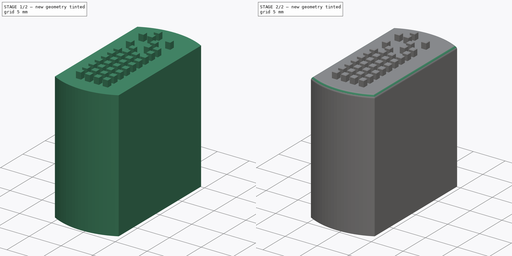
[diagram: build sequence overview — one tinted view per stage of 2, left to right]
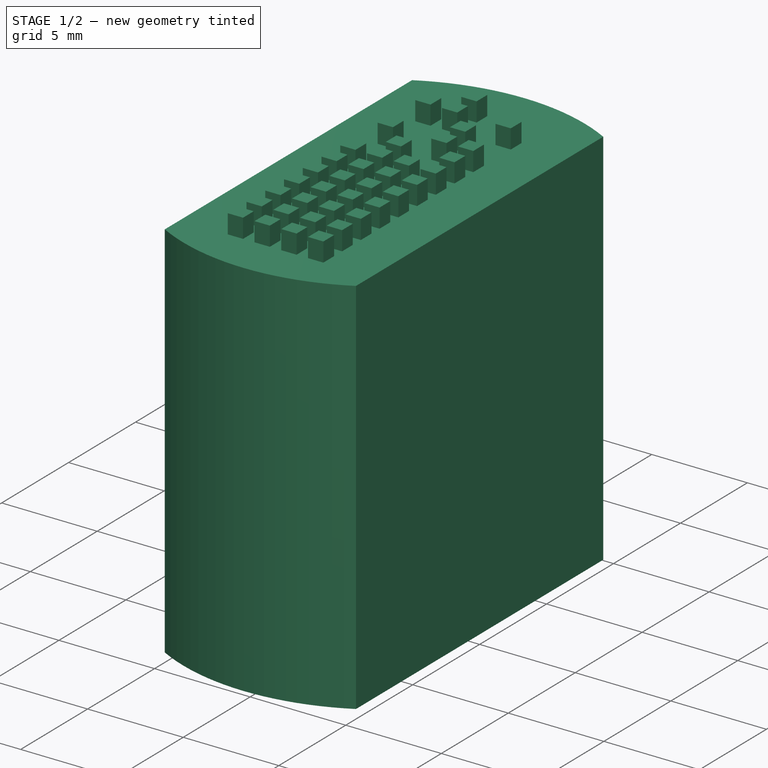
[diagram: stage 1 of 2 — iso view after this stage's code; geometry added in this stage tinted green]
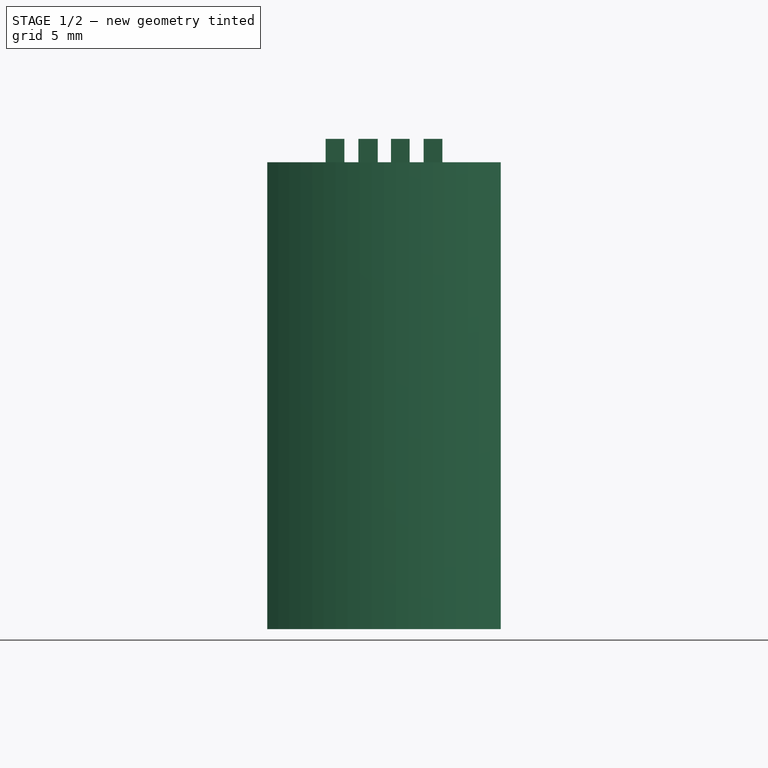
[diagram: stage 1 of 2 — front view after this stage's code; geometry added in this stage tinted green]
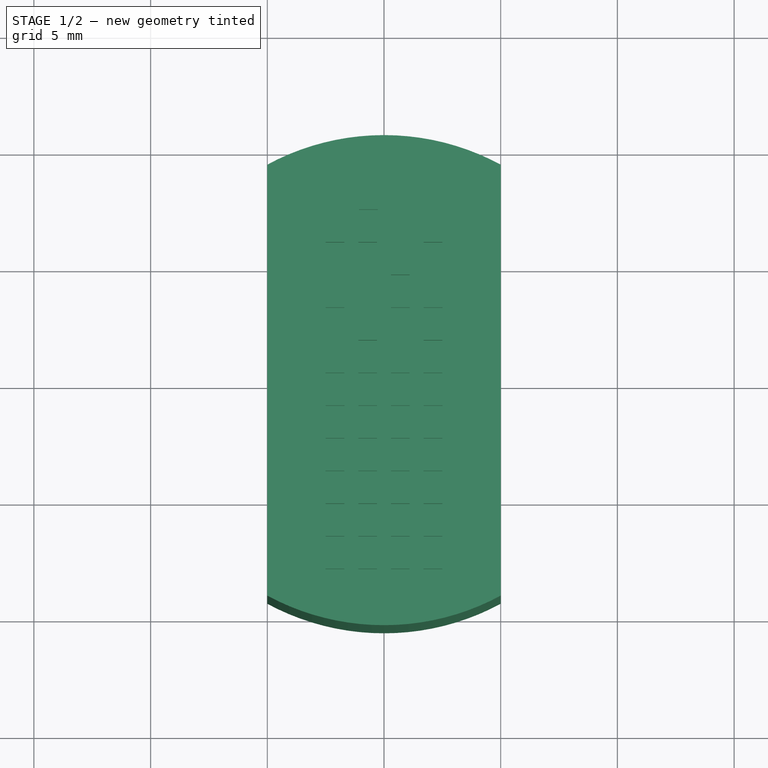
[diagram: stage 1 of 2 — top view after this stage's code; geometry added in this stage tinted green]
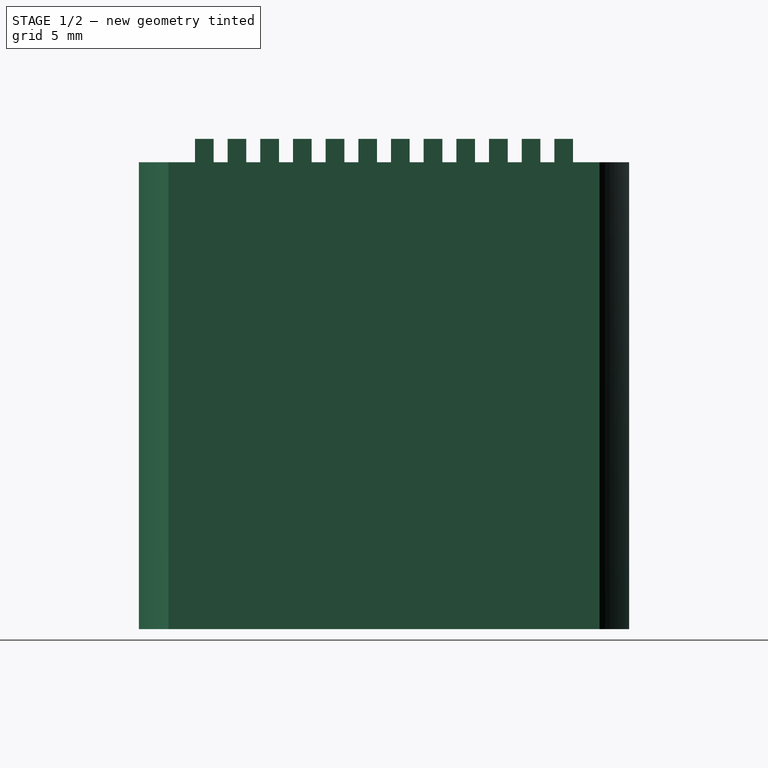
[diagram: stage 1 of 2 — right view after this stage's code; geometry added in this stage tinted green]
FCSTD DOCUMENT  (FreeCAD 0.18R16131 (Git))
Label: Stempel rote spots 1 (gespiegelt)
License: All rights reserved
LicenseURL: http://en.wikipedia.org/wiki/All_rights_reserved
objects: Sketcher::SketchObject×2, PartDesign::Pad×2, PartDesign::Chamfer×1, PartDesign::Fillet×1, PartDesign::Body×1
note: 9 computed .brp shape members not serialized (recipe doc carries the construction recipe); baked Part::Feature solids carry a one-line shape summary decoded from their .brp

FEATURE [Sketcher::SketchObject] Sketch
  MapMode = 5
  Support = -> [XY_Plane]
  sketch-geometry (4):
    g0: LineSegment StartX=-5 StartY=9.23309 StartZ=0 EndX=-5 EndY=-9.23309 EndZ=0
    g1: LineSegment StartX=5 StartY=-9.23309 StartZ=0 EndX=5 EndY=9.23309 EndZ=0
    g2: ArcOfCircle CenterX=0 CenterY=0 CenterZ=0 NormalX=0 NormalY=0 NormalZ=1 AngleXU=0 Radius=10.5 StartAngle=1.07448 EndAngle=2.06711
    g3: ArcOfCircle CenterX=0 CenterY=0 CenterZ=0 NormalX=0 NormalY=0 NormalZ=1 AngleXU=0 Radius=10.5 StartAngle=4.21607 EndAngle=5.20871
  constraints (12):
    c: Coincident(g3,g1)
    c: Coincident(g3,g0)
    c: Coincident(g0,g2)
    c: Coincident(g2,g1)
    c: Equal(g2,g3)
    c: Vertical(g1)
    c: Equal(g0,g1)
    c: Radius(g2) = 10.5
    c: Coincident(g3,g-1)
    c: Coincident(g2,g3)
    c: Vertical(g0)
    c: Distance(g1,g0) = 10
FEATURE [PartDesign::Pad] Pad
  Length = 20
  Length2 = 100
  Profile = -> Sketch
  Type = 0
FEATURE [Sketcher::SketchObject] Sketch001
  MapMode = 5
  Placement = pos=(0,0,20) rot=(0,0,1;0rad)
  Support = -> [Pad]
  sketch-geometry (152):
    g0: LineSegment StartX=-2.5 StartY=-7.3 StartZ=0 EndX=-1.7 EndY=-7.3 EndZ=0
    g1: LineSegment StartX=-1.7 StartY=-7.3 StartZ=0 EndX=-1.7 EndY=-8.1 EndZ=0
    g2: LineSegment StartX=-1.7 StartY=-8.1 StartZ=0 EndX=-2.5 EndY=-8.1 EndZ=0
    g3: LineSegment StartX=-2.5 StartY=-8.1 StartZ=0 EndX=-2.5 EndY=-7.3 EndZ=0
    g4: LineSegment StartX=-1.1 StartY=-8.1 StartZ=0 EndX=-0.3 EndY=-8.1 EndZ=0
    g5: LineSegment StartX=-0.3 StartY=-8.1 StartZ=0 EndX=-0.3 EndY=-7.3 EndZ=0
    g6: LineSegment StartX=-0.3 StartY=-7.3 StartZ=0 EndX=-1.1 EndY=-7.3 EndZ=0
    g7: LineSegment StartX=-1.1 StartY=-7.3 StartZ=0 EndX=-1.1 EndY=-8.1 EndZ=0
    g8: LineSegment StartX=0.3 StartY=-8.1 StartZ=0 EndX=1.1 EndY=-8.1 EndZ=0
    g9: LineSegment StartX=1.1 StartY=-8.1 StartZ=0 EndX=1.1 EndY=-7.3 EndZ=0
    g10: LineSegment StartX=1.1 StartY=-7.3 StartZ=0 EndX=0.3 EndY=-7.3 EndZ=0
    g11: LineSegment StartX=0.3 StartY=-7.3 StartZ=0 EndX=0.3 EndY=-8.1 EndZ=0
    g12: LineSegment StartX=1.7 StartY=-8.1 StartZ=0 EndX=2.5 EndY=-8.1 EndZ=0
    g13: LineSegment StartX=2.5 StartY=-8.1 StartZ=0 EndX=2.5 EndY=-7.3 EndZ=0
    g14: LineSegment StartX=2.5 StartY=-7.3 StartZ=0 EndX=1.7 EndY=-7.3 EndZ=0
    g15: LineSegment StartX=1.7 StartY=-7.3 StartZ=0 EndX=1.7 EndY=-8.1 EndZ=0
    g16: LineSegment StartX=-2.5 StartY=-5.9 StartZ=0 EndX=-1.7 EndY=-5.9 EndZ=0
    g17: LineSegment StartX=-1.7 StartY=-5.9 StartZ=0 EndX=-1.7 EndY=-6.7 EndZ=0
    g18: LineSegment StartX=-1.7 StartY=-6.7 StartZ=0 EndX=-2.5 EndY=-6.7 EndZ=0
    g19: LineSegment StartX=-2.5 StartY=-6.7 StartZ=0 EndX=-2.5 EndY=-5.9 EndZ=0
    g20: LineSegment StartX=-1.1 StartY=-6.7 StartZ=0 EndX=-0.3 EndY=-6.7 EndZ=0
    g21: LineSegment StartX=-0.3 StartY=-6.7 StartZ=0 EndX=-0.3 EndY=-5.9 EndZ=0
    g22: LineSegment StartX=-0.3 StartY=-5.9 StartZ=0 EndX=-1.1 EndY=-5.9 EndZ=0
    g23: LineSegment StartX=-1.1 StartY=-5.9 StartZ=0 EndX=-1.1 EndY=-6.7 EndZ=0
    g24: LineSegment StartX=0.3 StartY=-6.7 StartZ=0 EndX=1.1 EndY=-6.7 EndZ=0
    g25: LineSegment StartX=1.1 StartY=-6.7 StartZ=0 EndX=1.1 EndY=-5.9 EndZ=0
    g26: LineSegment StartX=1.1 StartY=-5.9 StartZ=0 EndX=0.3 EndY=-5.9 EndZ=0
    g27: LineSegment StartX=0.3 StartY=-5.9 StartZ=0 EndX=0.3 EndY=-6.7 EndZ=0
    g28: LineSegment StartX=1.7 StartY=-6.7 StartZ=0 EndX=2.5 EndY=-6.7 EndZ=0
    g29: LineSegment StartX=2.5 StartY=-6.7 StartZ=0 EndX=2.5 EndY=-5.9 EndZ=0
    g30: LineSegment StartX=2.5 StartY=-5.9 StartZ=0 EndX=1.7 EndY=-5.9 EndZ=0
    g31: LineSegment StartX=1.7 StartY=-5.9 StartZ=0 EndX=1.7 EndY=-6.7 EndZ=0
    g32: LineSegment StartX=-2.5 StartY=-4.5 StartZ=0 EndX=-1.7 EndY=-4.5 EndZ=0
    g33: LineSegment StartX=-1.7 StartY=-4.5 StartZ=0 EndX=-1.7 EndY=-5.3 EndZ=0
    g34: LineSegment StartX=-1.7 StartY=-5.3 StartZ=0 EndX=-2.5 EndY=-5.3 EndZ=0
    g35: LineSegment StartX=-2.5 StartY=-5.3 StartZ=0 EndX=-2.5 EndY=-4.5 EndZ=0
    g36: LineSegment StartX=-1.1 StartY=-5.3 StartZ=0 EndX=-0.3 EndY=-5.3 EndZ=0
    g37: LineSegment StartX=-0.3 StartY=-5.3 StartZ=0 EndX=-0.3 EndY=-4.5 EndZ=0
    g38: LineSegment StartX=-0.3 StartY=-4.5 StartZ=0 EndX=-1.1 EndY=-4.5 EndZ=0
    g39: LineSegment StartX=-1.1 StartY=-4.5 StartZ=0 EndX=-1.1 EndY=-5.3 EndZ=0
    g40: LineSegment StartX=0.3 StartY=-5.3 StartZ=0 EndX=1.1 EndY=-5.3 EndZ=0
    g41: LineSegment StartX=1.1 StartY=-5.3 StartZ=0 EndX=1.1 EndY=-4.5 EndZ=0
    g42: LineSegment StartX=1.1 StartY=-4.5 StartZ=0 EndX=0.3 EndY=-4.5 EndZ=0
    g43: LineSegment StartX=0.3 StartY=-4.5 StartZ=0 EndX=0.3 EndY=-5.3 EndZ=0
    g44: LineSegment StartX=1.7 StartY=-5.3 StartZ=0 EndX=2.5 EndY=-5.3 EndZ=0
    g45: LineSegment StartX=2.5 StartY=-5.3 StartZ=0 EndX=2.5 EndY=-4.5 EndZ=0
    g46: LineSegment StartX=2.5 StartY=-4.5 StartZ=0 EndX=1.7 EndY=-4.5 EndZ=0
    g47: LineSegment StartX=1.7 StartY=-4.5 StartZ=0 EndX=1.7 EndY=-5.3 EndZ=0
    g48: LineSegment StartX=-2.5 StartY=-3.1 StartZ=0 EndX=-1.7 EndY=-3.1 EndZ=0
    g49: LineSegment StartX=-1.7 StartY=-3.1 StartZ=0 EndX=-1.7 EndY=-3.9 EndZ=0
    g50: LineSegment StartX=-1.7 StartY=-3.9 StartZ=0 EndX=-2.5 EndY=-3.9 EndZ=0
    g51: LineSegment StartX=-2.5 StartY=-3.9 StartZ=0 EndX=-2.5 EndY=-3.1 EndZ=0
    g52: LineSegment StartX=-1.1 StartY=-3.9 StartZ=0 EndX=-0.3 EndY=-3.9 EndZ=0
    g53: LineSegment StartX=-0.3 StartY=-3.9 StartZ=0 EndX=-0.3 EndY=-3.1 EndZ=0
    g54: LineSegment StartX=-0.3 StartY=-3.1 StartZ=0 EndX=-1.1 EndY=-3.1 EndZ=0
    g55: LineSegment StartX=-1.1 StartY=-3.1 StartZ=0 EndX=-1.1 EndY=-3.9 EndZ=0
    g56: LineSegment StartX=0.3 StartY=-3.9 StartZ=0 EndX=1.1 EndY=-3.9 EndZ=0
    g57: LineSegment StartX=1.1 StartY=-3.9 StartZ=0 EndX=1.1 EndY=-3.1 EndZ=0
    g58: LineSegment StartX=1.1 StartY=-3.1 StartZ=0 EndX=0.3 EndY=-3.1 EndZ=0
    g59: LineSegment StartX=0.3 StartY=-3.1 StartZ=0 EndX=0.3 EndY=-3.9 EndZ=0
    g60: LineSegment StartX=1.7 StartY=-3.9 StartZ=0 EndX=2.5 EndY=-3.9 EndZ=0
    g61: LineSegment StartX=2.5 StartY=-3.9 StartZ=0 EndX=2.5 EndY=-3.1 EndZ=0
    g62: LineSegment StartX=2.5 StartY=-3.1 StartZ=0 EndX=1.7 EndY=-3.1 EndZ=0
    g63: LineSegment StartX=1.7 StartY=-3.1 StartZ=0 EndX=1.7 EndY=-3.9 EndZ=0
    g64: LineSegment StartX=-2.5 StartY=-1.7 StartZ=0 EndX=-1.7 EndY=-1.7 EndZ=0
    g65: LineSegment StartX=-1.7 StartY=-1.7 StartZ=0 EndX=-1.7 EndY=-2.5 EndZ=0
    g66: LineSegment StartX=-1.7 StartY=-2.5 StartZ=0 EndX=-2.5 EndY=-2.5 EndZ=0
    g67: LineSegment StartX=-2.5 StartY=-2.5 StartZ=0 EndX=-2.5 EndY=-1.7 EndZ=0
    g68: LineSegment StartX=-1.1 StartY=-2.5 StartZ=0 EndX=-0.3 EndY=-2.5 EndZ=0
    g69: LineSegment StartX=-0.3 StartY=-2.5 StartZ=0 EndX=-0.3 EndY=-1.7 EndZ=0
    g70: LineSegment StartX=-0.3 StartY=-1.7 StartZ=0 EndX=-1.1 EndY=-1.7 EndZ=0
    g71: LineSegment StartX=-1.1 StartY=-1.7 StartZ=0 EndX=-1.1 EndY=-2.5 EndZ=0
    g72: LineSegment StartX=0.3 StartY=-2.5 StartZ=0 EndX=1.1 EndY=-2.5 EndZ=0
    g73: LineSegment StartX=1.1 StartY=-2.5 StartZ=0 EndX=1.1 EndY=-1.7 EndZ=0
    g74: LineSegment StartX=1.1 StartY=-1.7 StartZ=0 EndX=0.3 EndY=-1.7 EndZ=0
    g75: LineSegment StartX=0.3 StartY=-1.7 StartZ=0 EndX=0.3 EndY=-2.5 EndZ=0
    g76: LineSegment StartX=1.7 StartY=-2.5 StartZ=0 EndX=2.5 EndY=-2.5 EndZ=0
    g77: LineSegment StartX=2.5 StartY=-2.5 StartZ=0 EndX=2.5 EndY=-1.7 EndZ=0
    g78: LineSegment StartX=2.5 StartY=-1.7 StartZ=0 EndX=1.7 EndY=-1.7 EndZ=0
    g79: LineSegment StartX=1.7 StartY=-1.7 StartZ=0 EndX=1.7 EndY=-2.5 EndZ=0
    g80: LineSegment StartX=-2.5 StartY=-0.3 StartZ=0 EndX=-1.7 EndY=-0.3 EndZ=0
    g81: LineSegment StartX=-1.7 StartY=-0.3 StartZ=0 EndX=-1.7 EndY=-1.1 EndZ=0
    g82: LineSegment StartX=-1.7 StartY=-1.1 StartZ=0 EndX=-2.5 EndY=-1.1 EndZ=0
    g83: LineSegment StartX=-2.5 StartY=-1.1 StartZ=0 EndX=-2.5 EndY=-0.3 EndZ=0
    g84: LineSegment StartX=-1.1 StartY=-1.1 StartZ=0 EndX=-0.3 EndY=-1.1 EndZ=0
    g85: LineSegment StartX=-0.3 StartY=-1.1 StartZ=0 EndX=-0.3 EndY=-0.3 EndZ=0
    g86: LineSegment StartX=-0.3 StartY=-0.3 StartZ=0 EndX=-1.1 EndY=-0.3 EndZ=0
    g87: LineSegment StartX=-1.1 StartY=-0.3 StartZ=0 EndX=-1.1 EndY=-1.1 EndZ=0
    g88: LineSegment StartX=0.3 StartY=-1.1 StartZ=0 EndX=1.1 EndY=-1.1 EndZ=0
    g89: LineSegment StartX=1.1 StartY=-1.1 StartZ=0 EndX=1.1 EndY=-0.3 EndZ=0
    g90: LineSegment StartX=1.1 StartY=-0.3 StartZ=0 EndX=0.3 EndY=-0.3 EndZ=0
    g91: LineSegment StartX=0.3 StartY=-0.3 StartZ=0 EndX=0.3 EndY=-1.1 EndZ=0
    g92: LineSegment StartX=1.7 StartY=-1.1 StartZ=0 EndX=2.5 EndY=-1.1 EndZ=0
    g93: LineSegment StartX=2.5 StartY=-1.1 StartZ=0 EndX=2.5 EndY=-0.3 EndZ=0
    g94: LineSegment StartX=2.5 StartY=-0.3 StartZ=0 EndX=1.7 EndY=-0.3 EndZ=0
    g95: LineSegment StartX=1.7 StartY=-0.3 StartZ=0 EndX=1.7 EndY=-1.1 EndZ=0
    g96: LineSegment StartX=-2.5 StartY=1.1 StartZ=0 EndX=-1.7 EndY=1.1 EndZ=0
    g97: LineSegment StartX=-1.7 StartY=1.1 StartZ=0 EndX=-1.7 EndY=0.3 EndZ=0
    g98: LineSegment StartX=-1.7 StartY=0.3 StartZ=0 EndX=-2.5 EndY=0.3 EndZ=0
    g99: LineSegment StartX=-2.5 StartY=0.3 StartZ=0 EndX=-2.5 EndY=1.1 EndZ=0
    g100: LineSegment StartX=-1.1 StartY=0.3 StartZ=0 EndX=-0.3 EndY=0.3 EndZ=0
    g101: LineSegment StartX=-0.3 StartY=0.3 StartZ=0 EndX=-0.3 EndY=1.1 EndZ=0
    g102: LineSegment StartX=-0.3 StartY=1.1 StartZ=0 EndX=-1.1 EndY=1.1 EndZ=0
    g103: LineSegment StartX=-1.1 StartY=1.1 StartZ=0 EndX=-1.1 EndY=0.3 EndZ=0
    g104: LineSegment StartX=0.3 StartY=0.3 StartZ=0 EndX=1.1 EndY=0.3 EndZ=0
    g105: LineSegment StartX=1.1 StartY=0.3 StartZ=0 EndX=1.1 EndY=1.1 EndZ=0
    g106: LineSegment StartX=1.1 StartY=1.1 StartZ=0 EndX=0.3 EndY=1.1 EndZ=0
    g107: LineSegment StartX=0.3 StartY=1.1 StartZ=0 EndX=0.3 EndY=0.3 EndZ=0
    g108: LineSegment StartX=1.7 StartY=0.3 StartZ=0 EndX=2.5 EndY=0.3 EndZ=0
    g109: LineSegment StartX=2.5 StartY=0.3 StartZ=0 EndX=2.5 EndY=1.1 EndZ=0
    g110: LineSegment StartX=2.5 StartY=1.1 StartZ=0 EndX=1.7 EndY=1.1 EndZ=0
    g111: LineSegment StartX=1.7 StartY=1.1 StartZ=0 EndX=1.7 EndY=0.3 EndZ=0
    g112: LineSegment StartX=-1.1 StartY=1.7 StartZ=0 EndX=-0.3 EndY=1.7 EndZ=0
    g113: LineSegment StartX=-0.3 StartY=1.7 StartZ=0 EndX=-0.3 EndY=2.5 EndZ=0
    g114: LineSegment StartX=-0.3 StartY=2.5 StartZ=0 EndX=-1.1 EndY=2.5 EndZ=0
    g115: LineSegment StartX=-1.1 StartY=2.5 StartZ=0 EndX=-1.1 EndY=1.7 EndZ=0
    g116: LineSegment StartX=1.7 StartY=1.7 StartZ=0 EndX=2.5 EndY=1.7 EndZ=0
    g117: LineSegment StartX=2.5 StartY=1.7 StartZ=0 EndX=2.5 EndY=2.5 EndZ=0
    g118: LineSegment StartX=2.5 StartY=2.5 StartZ=0 EndX=1.7 EndY=2.5 EndZ=0
    g119: LineSegment StartX=1.7 StartY=2.5 StartZ=0 EndX=1.7 EndY=1.7 EndZ=0
    g120: LineSegment StartX=-2.50333 StartY=3.90083 StartZ=0 EndX=-1.7025 EndY=3.90083 EndZ=0
    g121: LineSegment StartX=-1.7025 StartY=3.90083 StartZ=0 EndX=-1.7025 EndY=3.1 EndZ=0
    g122: LineSegment StartX=-1.7025 StartY=3.1 StartZ=0 EndX=-2.50333 EndY=3.1 EndZ=0
    g123: LineSegment StartX=-2.50333 StartY=3.1 StartZ=0 EndX=-2.50333 EndY=3.90083 EndZ=0
    g124: LineSegment StartX=0.298336 StartY=3.1 StartZ=0 EndX=1.09917 EndY=3.1 EndZ=0
    g125: LineSegment StartX=1.09917 StartY=3.1 StartZ=0 EndX=1.09917 EndY=3.90083 EndZ=0
    g126: LineSegment StartX=1.09917 StartY=3.90083 StartZ=0 EndX=0.298336 EndY=3.90083 EndZ=0
    g127: LineSegment StartX=0.298336 StartY=3.90083 StartZ=0 EndX=0.298336 EndY=3.1 EndZ=0
    g128: LineSegment StartX=1.69917 StartY=3.1 StartZ=0 EndX=2.5 EndY=3.1 EndZ=0
    g129: LineSegment StartX=2.5 StartY=3.1 StartZ=0 EndX=2.5 EndY=3.90083 EndZ=0
    g130: LineSegment StartX=2.5 StartY=3.90083 StartZ=0 EndX=1.69917 EndY=3.90083 EndZ=0
    g131: LineSegment StartX=1.69917 StartY=3.90083 StartZ=0 EndX=1.69917 EndY=3.1 EndZ=0
    g132: LineSegment StartX=0.298336 StartY=4.50083 StartZ=0 EndX=1.09917 EndY=4.50083 EndZ=0
    g133: LineSegment StartX=1.09917 StartY=4.50083 StartZ=0 EndX=1.09917 EndY=5.30166 EndZ=0
    g134: LineSegment StartX=1.09917 StartY=5.30166 StartZ=0 EndX=0.298336 EndY=5.30166 EndZ=0
    g135: LineSegment StartX=0.298336 StartY=5.30166 StartZ=0 EndX=0.298336 EndY=4.50083 EndZ=0
    g136: LineSegment StartX=-2.5 StartY=6.7 StartZ=0 EndX=-1.7 EndY=6.7 EndZ=0
    g137: LineSegment StartX=-1.7 StartY=6.7 StartZ=0 EndX=-1.7 EndY=5.9 EndZ=0
    g138: LineSegment StartX=-1.7 StartY=5.9 StartZ=0 EndX=-2.5 EndY=5.9 EndZ=0
    g139: LineSegment StartX=-2.5 StartY=5.9 StartZ=0 EndX=-2.5 EndY=6.7 EndZ=0
    g140: LineSegment StartX=-1.1 StartY=5.9 StartZ=0 EndX=-0.3 EndY=5.9 EndZ=0
    g141: LineSegment StartX=-0.3 StartY=5.9 StartZ=0 EndX=-0.3 EndY=6.7 EndZ=0
    g142: LineSegment StartX=-0.3 StartY=6.7 StartZ=0 EndX=-1.1 EndY=6.7 EndZ=0
    g143: LineSegment StartX=-1.1 StartY=6.7 StartZ=0 EndX=-1.1 EndY=5.9 EndZ=0
    g144: LineSegment StartX=1.7 StartY=5.9 StartZ=0 EndX=2.5 EndY=5.9 EndZ=0
    g145: LineSegment StartX=2.5 StartY=5.9 StartZ=0 EndX=2.5 EndY=6.7 EndZ=0
    g146: LineSegment StartX=2.5 StartY=6.7 StartZ=0 EndX=1.7 EndY=6.7 EndZ=0
    g147: LineSegment StartX=1.7 StartY=6.7 StartZ=0 EndX=1.7 EndY=5.9 EndZ=0
    g148: LineSegment StartX=-1.06903 StartY=7.3 StartZ=0 EndX=-0.26903 EndY=7.3 EndZ=0
    g149: LineSegment StartX=-0.26903 StartY=7.3 StartZ=0 EndX=-0.26903 EndY=8.1 EndZ=0
    g150: LineSegment StartX=-0.26903 StartY=8.1 StartZ=0 EndX=-1.06903 EndY=8.1 EndZ=0
    g151: LineSegment StartX=-1.06903 StartY=8.1 StartZ=0 EndX=-1.06903 EndY=7.3 EndZ=0
  constraints (446):
    c: Coincident(g0,g1)
    c: Coincident(g1,g2)
    c: Coincident(g2,g3)
    c: Coincident(g3,g0)
    c: Horizontal(g0)
    c: Horizontal(g2)
    c: Vertical(g1)
    c: Vertical(g3)
    c: Coincident(g4,g5)
    c: Coincident(g5,g6)
    c: Coincident(g6,g7)
    c: Coincident(g7,g4)
    c: Horizontal(g4)
    c: Horizontal(g6)
    c: Vertical(g5)
    c: Vertical(g7)
    c: Coincident(g8,g9)
    c: Coincident(g9,g10)
    c: Coincident(g10,g11)
    c: Coincident(g11,g8)
    c: Horizontal(g8)
    c: Horizontal(g10)
    c: Vertical(g9)
    c: Vertical(g11)
    c: Coincident(g12,g13)
    c: Coincident(g13,g14)
    c: Coincident(g14,g15)
    c: Coincident(g15,g12)
    c: Horizontal(g12)
    c: Horizontal(g14)
    c: Vertical(g13)
    c: Vertical(g15)
    c: Equal(g13,g12)
    c: Equal(g12,g9)
    c: Equal(g9,g8)
    c: Equal(g8,g5)
    c: Equal(g5,g4)
    c: Equal(g4,g1)
    c: Equal(g1,g0)
    c: DistanceX(g-2,g12) = 2.5
    c: Distance(g14) = 0.8
    c: Distance(g4,g11) = 0.6
    c: Distance(g8,g15) = 0.6
    c: DistanceY(g-1,g0) = -7.3
    c: DistanceY(g-1,g6) = -7.3
    c: DistanceY(g-1,g10) = -7.3
    c: DistanceY(g-1,g13) = -7.3
    c: Coincident(g16,g17)
    c: Coincident(g17,g18)
    c: Coincident(g18,g19)
    c: Coincident(g19,g16)
    c: Horizontal(g16)
    c: Horizontal(g18)
    c: Vertical(g17)
    c: Vertical(g19)
    c: Coincident(g20,g21)
    c: Coincident(g21,g22)
    c: Coincident(g22,g23)
    c: Coincident(g23,g20)
    c: Horizontal(g20)
    c: Horizontal(g22)
    c: Vertical(g21)
    c: Vertical(g23)
    c: Coincident(g24,g25)
    c: Coincident(g25,g26)
    c: Coincident(g26,g27)
    c: Coincident(g27,g24)
    c: Horizontal(g24)
    c: Horizontal(g26)
    c: Vertical(g25)
    c: Vertical(g27)
    c: Coincident(g28,g29)
    c: Coincident(g29,g30)
    c: Coincident(g30,g31)
    c: Coincident(g31,g28)
    c: Horizontal(g28)
    c: Horizontal(g30)
    c: Vertical(g29)
    c: Vertical(g31)
    c: Equal(g29,g28)
    c: Equal(g28,g25)
    c: Equal(g25,g24)
    c: Equal(g24,g21)
    c: Equal(g21,g20)
    c: Equal(g20,g17)
    c: Equal(g17,g16)
    c: Equal(g14,g30) = 1
    c: Distance(g20,g27) = 0.6
    c: Distance(g24,g31) = 0.6
    c: Distance(g28,g14) = 0.6
    c: Distance(g24,g10) = 0.6
    c: Distance(g6,g1) = 0.6
    c: Distance(g22,g17) = 0.6
    c: Distance(g20,g6) = 0.6
    c: Distance(g17,g0) = 0.6
    c: DistanceX(g-2,g28) = 2.5
    c: Coincident(g32,g33)
    c: Coincident(g33,g34)
    c: Coincident(g34,g35)
    c: Coincident(g35,g32)
    c: Horizontal(g32)
    c: Horizontal(g34)
    c: Vertical(g33)
    c: Vertical(g35)
    c: Coincident(g36,g37)
    c: Coincident(g37,g38)
    c: Coincident(g38,g39)
    c: Coincident(g39,g36)
    c: Horizontal(g36)
    c: Horizontal(g38)
    c: Vertical(g37)
    c: Vertical(g39)
    c: Coincident(g40,g41)
    c: Coincident(g41,g42)
    c: Coincident(g42,g43)
    c: Coincident(g43,g40)
    c: Horizontal(g40)
    c: Horizontal(g42)
    c: Vertical(g41)
    c: Vertical(g43)
    c: Coincident(g44,g45)
    c: Coincident(g45,g46)
    c: Coincident(g46,g47)
    c: Coincident(g47,g44)
    c: Horizontal(g44)
    c: Horizontal(g46)
    c: Vertical(g45)
    c: Vertical(g47)
    c: Equal(g45,g44)
    c: Equal(g44,g41)
    c: Equal(g41,g40)
    c: Equal(g40,g37)
    c: Equal(g37,g36)
    c: Equal(g36,g33)
    c: Equal(g33,g32)
    c: Equal(g14,g46) = 0.8
    c: Distance(g36,g43) = 0.6
    c: Distance(g40,g47) = 0.6
    c: Coincident(g48,g49)
    c: Coincident(g49,g50)
    c: Coincident(g50,g51)
    c: Coincident(g51,g48)
    c: Horizontal(g48)
    c: Horizontal(g50)
    c: Vertical(g49)
    c: Vertical(g51)
    c: Coincident(g52,g53)
    c: Coincident(g53,g54)
    c: Coincident(g54,g55)
    c: Coincident(g55,g52)
    c: Horizontal(g52)
    c: Horizontal(g54)
    c: Vertical(g53)
    c: Vertical(g55)
    c: Coincident(g56,g57)
    c: Coincident(g57,g58)
    c: Coincident(g58,g59)
    c: Coincident(g59,g56)
    c: Horizontal(g56)
    c: Horizontal(g58)
    c: Vertical(g57)
    c: Vertical(g59)
    c: Coincident(g60,g61)
    c: Coincident(g61,g62)
    c: Coincident(g62,g63)
    c: Coincident(g63,g60)
    c: Horizontal(g60)
    c: Horizontal(g62)
    c: Vertical(g61)
    c: Vertical(g63)
    c: Equal(g61,g60)
    c: Equal(g60,g57)
    c: Equal(g57,g56)
    c: Equal(g56,g53)
    c: Equal(g53,g52)
    c: Equal(g52,g49)
    c: Equal(g49,g48)
    c: Equal(g46,g62) = 1
    c: Distance(g52,g59) = 0.6
    c: Distance(g56,g63) = 0.6
    c: Distance(g60,g46) = 0.6
    c: Distance(g56,g42) = 0.6
    c: Distance(g38,g33) = 0.6
    c: Distance(g54,g49) = 0.6
    c: Distance(g52,g38) = 0.6
    c: Distance(g49,g32) = 0.6
    c: Distance(g44,g30) = 0.6
    c: Distance(g40,g26) = 0.6
    c: Distance(g36,g22) = 0.6
    c: Distance(g33,g16) = 0.6
    c: Coincident(g64,g65)
    c: Coincident(g65,g66)
    c: Coincident(g66,g67)
    c: Coincident(g67,g64)
    c: Horizontal(g64)
    c: Horizontal(g66)
    c: Vertical(g65)
    c: Vertical(g67)
    c: Coincident(g68,g69)
    c: Coincident(g69,g70)
    c: Coincident(g70,g71)
    c: Coincident(g71,g68)
    c: Horizontal(g68)
    c: Horizontal(g70)
    c: Vertical(g69)
    c: Vertical(g71)
    c: Coincident(g72,g73)
    c: Coincident(g73,g74)
    c: Coincident(g74,g75)
    c: Coincident(g75,g72)
    c: Horizontal(g72)
    c: Horizontal(g74)
    c: Vertical(g73)
    c: Vertical(g75)
    c: Coincident(g76,g77)
    c: Coincident(g77,g78)
    c: Coincident(g78,g79)
    c: Coincident(g79,g76)
    c: Horizontal(g76)
    c: Horizontal(g78)
    c: Vertical(g77)
    c: Vertical(g79)
    c: Equal(g77,g76)
    c: Equal(g76,g73)
    c: Equal(g73,g72)
    c: Equal(g72,g69)
    c: Equal(g69,g68)
    c: Equal(g68,g65)
    c: Equal(g65,g64)
    c: Equal(g14,g78) = 0.8
    c: Distance(g68,g75) = 0.6
    c: Distance(g72,g79) = 0.6
    c: Coincident(g80,g81)
    c: Coincident(g81,g82)
    c: Coincident(g82,g83)
    c: Coincident(g83,g80)
    c: Horizontal(g80)
    c: Horizontal(g82)
    c: Vertical(g81)
    c: Vertical(g83)
    c: Coincident(g84,g85)
    c: Coincident(g85,g86)
    c: Coincident(g86,g87)
    c: Coincident(g87,g84)
    c: Horizontal(g84)
    c: Horizontal(g86)
    c: Vertical(g85)
    c: Vertical(g87)
    c: Coincident(g88,g89)
    c: Coincident(g89,g90)
    c: Coincident(g90,g91)
    c: Coincident(g91,g88)
    c: Horizontal(g88)
    c: Horizontal(g90)
    c: Vertical(g89)
    c: Vertical(g91)
    c: Coincident(g92,g93)
    c: Coincident(g93,g94)
    c: Coincident(g94,g95)
    c: Coincident(g95,g92)
    c: Horizontal(g92)
    c: Horizontal(g94)
    c: Vertical(g93)
    c: Vertical(g95)
    c: Equal(g93,g92)
    c: Equal(g92,g89)
    c: Equal(g89,g88)
    c: Equal(g88,g85)
    c: Equal(g85,g84)
    c: Equal(g84,g81)
    c: Equal(g81,g80)
    c: Equal(g78,g94) = 1
    c: Distance(g84,g91) = 0.6
    c: Distance(g88,g95) = 0.6
    c: Distance(g92,g78) = 0.6
    c: Distance(g88,g74) = 0.6
    c: Distance(g70,g65) = 0.6
    c: Distance(g86,g81) = 0.6
    c: Distance(g84,g70) = 0.6
    c: Distance(g81,g64) = 0.6
    c: Coincident(g96,g97)
    c: Coincident(g97,g98)
    c: Coincident(g98,g99)
    c: Coincident(g99,g96)
    c: Horizontal(g96)
    c: Horizontal(g98)
    c: Vertical(g97)
    c: Vertical(g99)
    c: Coincident(g100,g101)
    c: Coincident(g101,g102)
    c: Coincident(g102,g103)
    c: Coincident(g103,g100)
    c: Horizontal(g100)
    c: Horizontal(g102)
    c: Vertical(g101)
    c: Vertical(g103)
    c: Coincident(g104,g105)
    c: Coincident(g105,g106)
    c: Coincident(g106,g107)
    c: Coincident(g107,g104)
    c: Horizontal(g104)
    c: Horizontal(g106)
    c: Vertical(g105)
    c: Vertical(g107)
    c: Coincident(g108,g109)
    c: Coincident(g109,g110)
    c: Coincident(g110,g111)
    c: Coincident(g111,g108)
    c: Horizontal(g108)
    c: Horizontal(g110)
    c: Vertical(g109)
    c: Vertical(g111)
    c: Equal(g109,g108)
    c: Equal(g108,g105)
    c: Equal(g105,g104)
    c: Equal(g104,g101)
    c: Equal(g101,g100)
    c: Equal(g100,g97)
    c: Equal(g97,g96)
    c: Equal(g78,g110) = 0.8
    c: Distance(g100,g107) = 0.6
    c: Distance(g104,g111) = 0.6
    c: Coincident(g112,g113)
    c: Coincident(g113,g114)
    c: Coincident(g114,g115)
    c: Coincident(g115,g112)
    c: Horizontal(g112)
    c: Horizontal(g114)
    c: Vertical(g113)
    c: Vertical(g115)
    c: Coincident(g116,g117)
    c: Coincident(g117,g118)
    c: Coincident(g118,g119)
    c: Coincident(g119,g116)
    c: Horizontal(g116)
    c: Horizontal(g118)
    c: Vertical(g117)
    c: Vertical(g119)
    c: Equal(g117,g116)
    c: Equal(g113,g112)
    c: Equal(g110,g118) = 1
    c: Distance(g116,g110) = 0.6
    c: Distance(g102,g97) = 0.6
    c: Distance(g112,g102) = 0.6
    c: Distance(g108,g94) = 0.6
    c: Distance(g104,g90) = 0.6
    c: Distance(g100,g86) = 0.6
    c: Distance(g97,g80) = 0.6
    c: Distance(g76,g62) = 0.6
    c: Distance(g72,g58) = 0.6
    c: Distance(g68,g54) = 0.6
    c: Distance(g65,g48) = 0.6
    c: DistanceX(g-2,g44) = 2.5
    c: DistanceX(g-2,g60) = 2.5
    c: DistanceX(g-2,g76) = 2.5
    c: DistanceX(g-2,g92) = 2.5
    c: DistanceX(g-2,g108) = 2.5
    c: DistanceX(g-2,g116) = 2.5
    c: Coincident(g120,g121)
    c: Coincident(g121,g122)
    c: Coincident(g122,g123)
    c: Coincident(g123,g120)
    c: Horizontal(g120)
    c: Horizontal(g122)
    c: Vertical(g121)
    c: Vertical(g123)
    c: Coincident(g124,g125)
    c: Coincident(g125,g126)
    c: Coincident(g126,g127)
    c: Coincident(g127,g124)
    c: Horizontal(g124)
    c: Horizontal(g126)
    c: Vertical(g125)
    c: Vertical(g127)
    c: Coincident(g128,g129)
    c: Coincident(g129,g130)
    c: Coincident(g130,g131)
    c: Coincident(g131,g128)
    c: Horizontal(g128)
    c: Horizontal(g130)
    c: Vertical(g129)
    c: Vertical(g131)
    c: Equal(g129,g128)
    c: Equal(g128,g125)
    c: Equal(g125,g124)
    c: Equal(g121,g120)
    c: Distance(g124,g131) = 0.6
    c: Coincident(g132,g133)
    c: Coincident(g133,g134)
    c: Coincident(g134,g135)
    c: Coincident(g135,g132)
    c: Horizontal(g132)
    c: Horizontal(g134)
    c: Vertical(g133)
    c: Vertical(g135)
    c: Equal(g133,g132)
    c: Coincident(g136,g137)
    c: Coincident(g137,g138)
    c: Coincident(g138,g139)
    c: Coincident(g139,g136)
    c: Horizontal(g136)
    c: Vertical(g137)
    c: Vertical(g139)
    c: Coincident(g140,g141)
    c: Coincident(g141,g142)
    c: Coincident(g142,g143)
    c: Coincident(g143,g140)
    c: Horizontal(g140)
    c: Vertical(g141)
    c: Coincident(g144,g145)
    c: Coincident(g145,g146)
    c: Coincident(g146,g147)
    c: Coincident(g147,g144)
    c: Horizontal(g144)
    c: Horizontal(g146)
    c: Vertical(g145)
    c: Equal(g145,g144)
    c: Equal(g141,g140)
    c: Equal(g140,g137)
    c: Equal(g137,g136)
    c: Distance(g142,g137) = 0.6
    c: Distance(g132,g126) = 0.6
    c: Distance(g128,g118) = 0.6
    c: DistanceX(g-2,g128) = 2.5
    c: DistanceX(g-2,g144) = 2.5
    c: Coincident(g148,g149)
    c: Coincident(g149,g150)
    c: Coincident(g150,g151)
    c: Coincident(g151,g148)
    c: Horizontal(g148)
    c: Horizontal(g150)
    c: Vertical(g149)
    c: Vertical(g151)
    c: Equal(g149,g148)
    c: Distance(g148,g142) = 0.6
    c: Distance(g150) = 0.8
    c: DistanceY(g-1,g149) = 8.1
    c: DistanceX(g-2,g141) = -0.3
    c: Equal(g142,g143)
    c: Equal(g143,g136)
    c: Equal(g136,g139)
    c: Equal(g139,g148)
    c: DistanceY(g-1,g138) = 5.9
    c: Equal(g148,g146)
    c: Equal(g146,g147)
    c: DistanceY(g-1,g144) = 5.9
FEATURE [PartDesign::Pad] Pad001
  BaseFeature = -> Pad
  Length = 1
  Length2 = 100
  Profile = -> Sketch001
  Type = 0
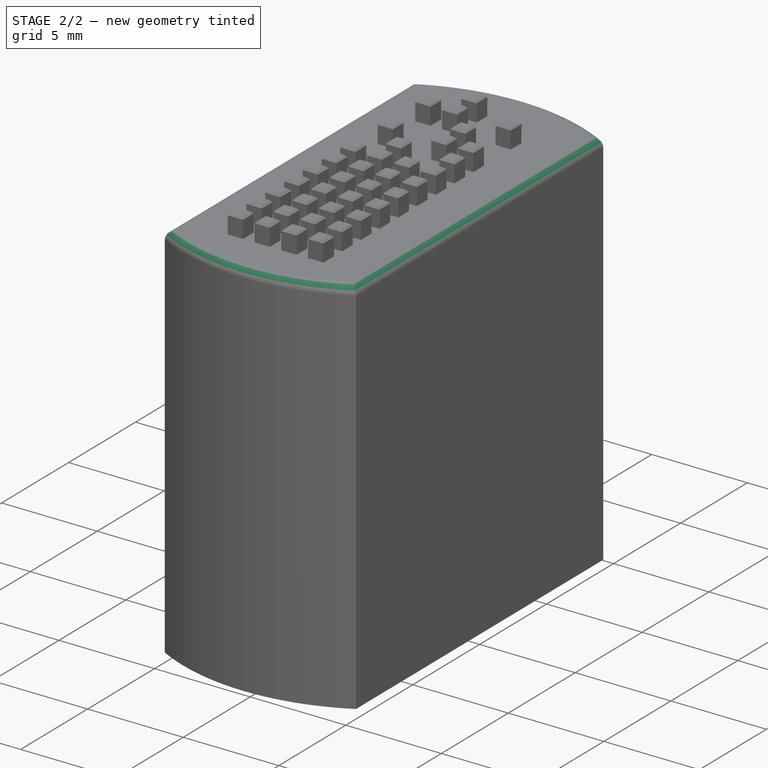
[diagram: stage 2 of 2 — iso view after this stage's code; geometry added in this stage tinted green]
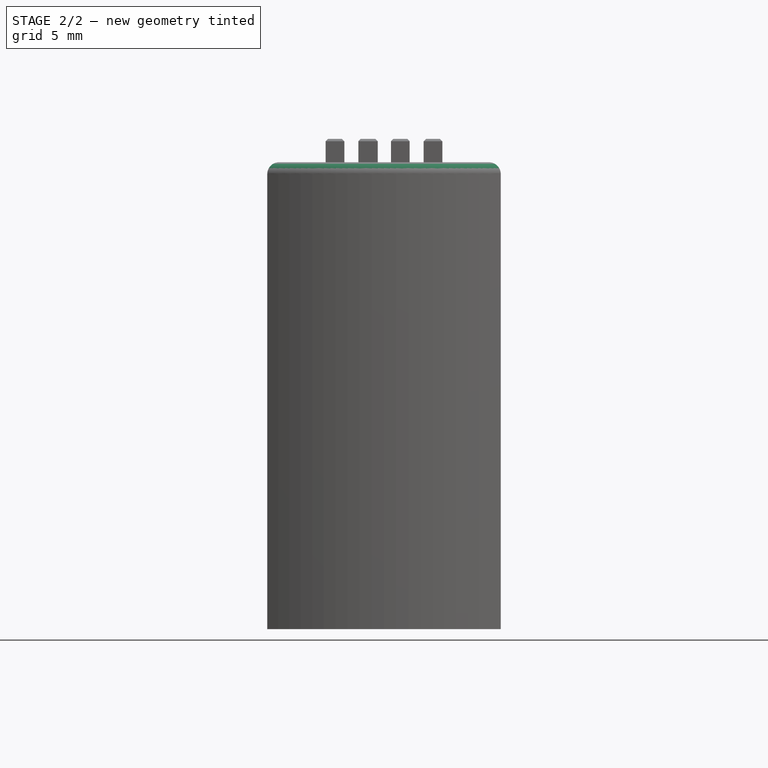
[diagram: stage 2 of 2 — front view after this stage's code; geometry added in this stage tinted green]
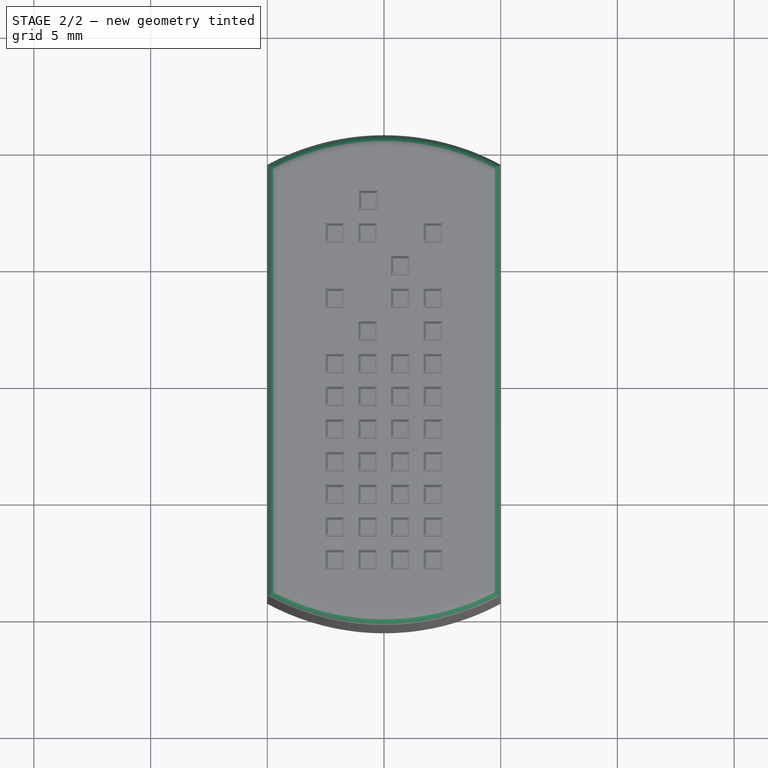
[diagram: stage 2 of 2 — top view after this stage's code; geometry added in this stage tinted green]
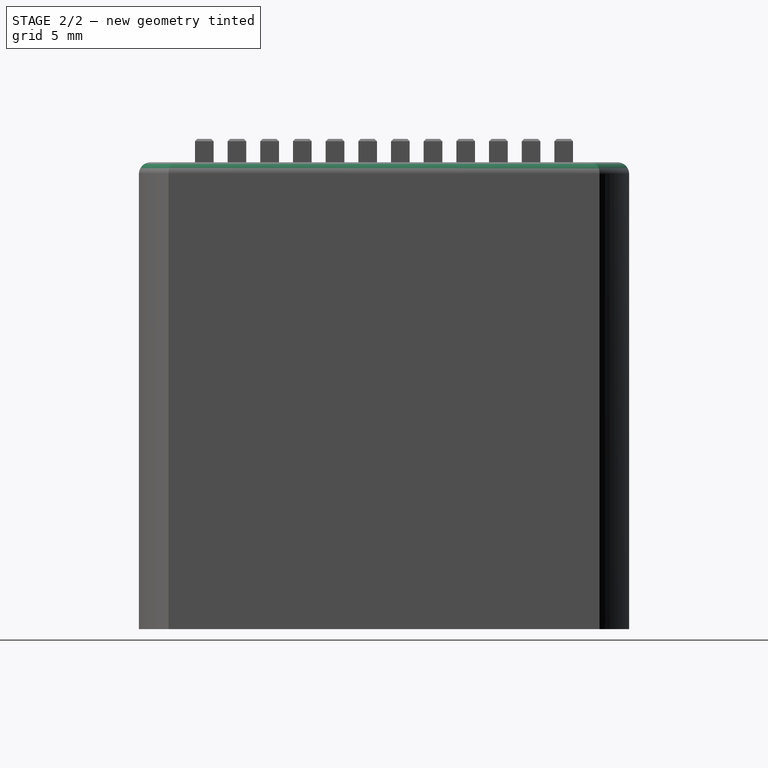
[diagram: stage 2 of 2 — right view after this stage's code; geometry added in this stage tinted green]
FEATURE [PartDesign::Chamfer] Chamfer
  Base = -> Pad001 [Face191,Face190,Face189,Face188,Face170,Face171,Face177,Face176,Face178,Face183,Face181,Face182,Face187,Face165,Face166,Face167,Face179,Face174,Face175,Face173,Face172,Face159,Face162,Face161,Face160,Face164,Face163,Face169,Face168,Face184,Face186,Face185,Face194,Face196,Face193,Face192,Face195,Face180]
  BaseFeature = -> Pad001
  Size = 0.1
FEATURE [PartDesign::Fillet] Fillet
  Base = -> Chamfer [Edge14,Edge12,Edge11,Edge13]
  BaseFeature = -> Chamfer
  Radius = 0.5
FEATURE [PartDesign::Body] Body
  Group = -> [Sketch,Pad,Sketch001,Pad001,Chamfer,Fillet]
  Origin = -> Origin
  Tip = -> Fillet
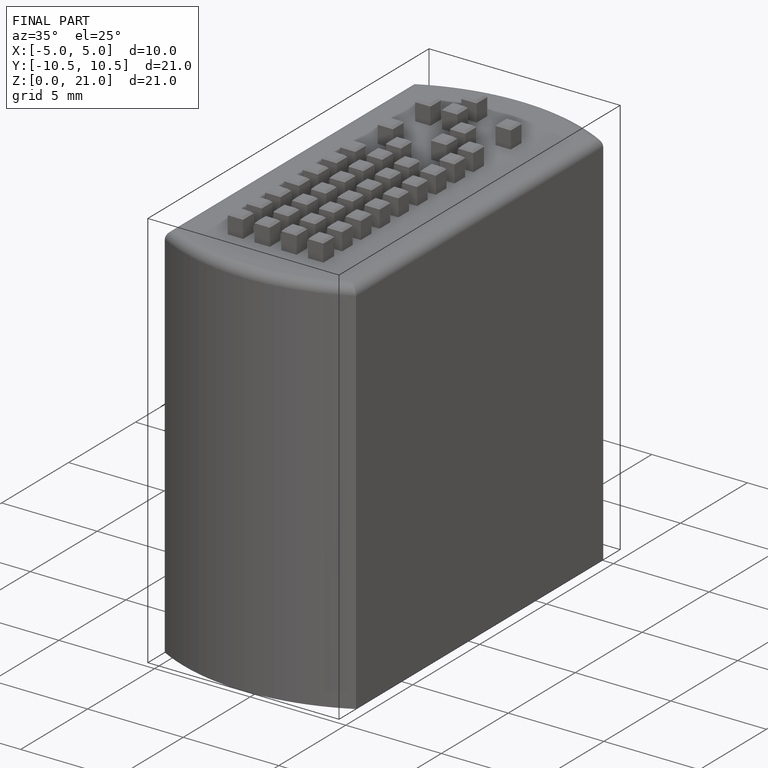
[diagram: finished part — iso view with bounding-box wireframe]
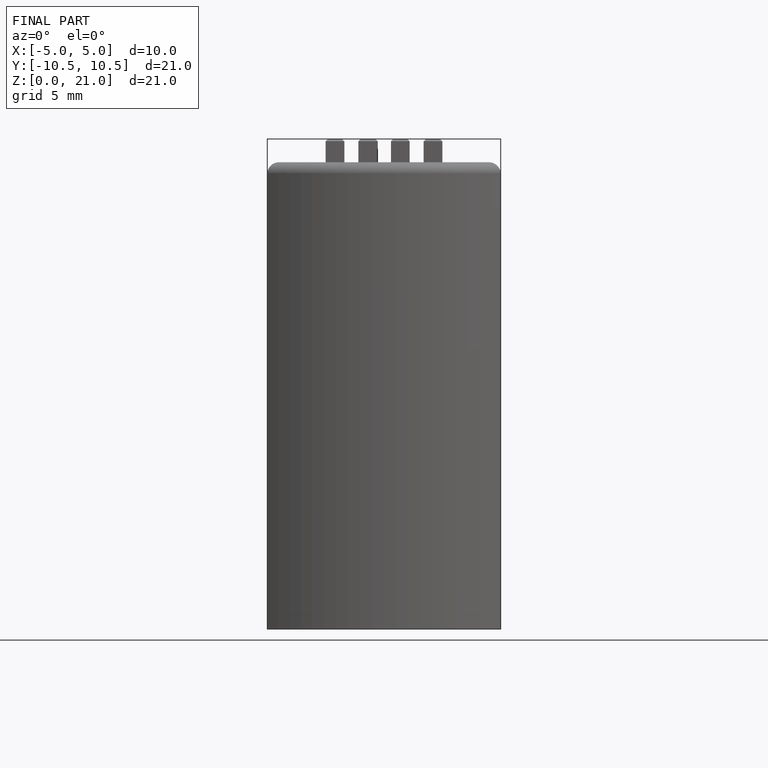
[diagram: finished part — front view with bounding-box wireframe]
